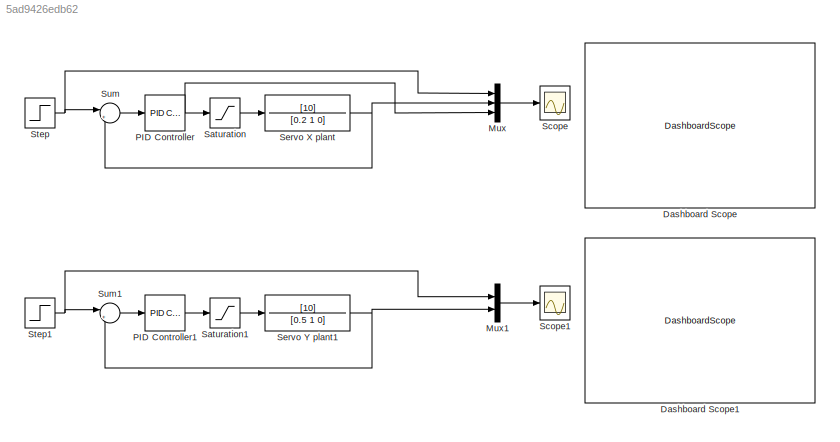
MODEL slx_5ad9426edb62
KIND model
CONFIG AbsTol = auto
CONFIG EnableMultiTasking = off
CONFIG FixedStep = auto
CONFIG MaxStep = auto
CONFIG MinStep = auto
CONFIG RelTol = 1e-3
CONFIG SampleTimeConstraint = Unconstrained
CONFIG SolverName = VariableStepAuto
CONFIG StartTime = 0.0
CONFIG StopTime = 10.0
BLOCK [DashboardScope] Dashboard Scope
BLOCK [DashboardScope] Dashboard Scope1
BLOCK [Mux] Mux
  DisplayOption = bar
  Inputs = 3
BLOCK [Mux] Mux1
  DisplayOption = bar
  Inputs = 2
BLOCK [Reference] PID Controller  REF=slpidlib/PID Controller
  LibrarySourceBlock = simulink/Continuous/PID Controller
  SourceBlock = slpidlib/PID Controller
  SourceType = PID 1dof
BLOCK [Reference] PID Controller1  REF=slpidlib/PID Controller
  LibrarySourceBlock = simulink/Continuous/PID Controller
  SourceBlock = slpidlib/PID Controller
  SourceType = PID 1dof
BLOCK [Saturate] Saturation
  LowerLimit = -10
  UpperLimit = 10
BLOCK [Saturate] Saturation1
  LowerLimit = -10
  UpperLimit = 10
BLOCK [Scope] Scope
  Floating = off
  NumInputPorts = 1
  ScopeSpecificationString = Simulink.scopes.TimeScopeBlockCfg('CurrentConfiguration', extmgr.ConfigurationSet(extmgr.Configuration('Core','General UI',true),extmgr.Configuration('Core','Source UI',true),extmgr.Configuration('Sources','WiredSimulink',true),extmgr.Configuration('Visuals','Time Domain',true,'SerializedDisplays',{struct('MinYLimReal','-516.41471','MaxYLimReal','4647.03558','YLabelReal','','MinYLimMag',' 0.00000'...<+1428ch>
BLOCK [Scope] Scope1
  Floating = off
  NumInputPorts = 1
  ScopeSpecificationString = Simulink.scopes.TimeScopeBlockCfg('CurrentConfiguration', extmgr.ConfigurationSet(extmgr.Configuration('Core','General UI',true),extmgr.Configuration('Core','Source UI',true),extmgr.Configuration('Sources','WiredSimulink',true,'DataLoggingVariableName','ScopeData1'),extmgr.Configuration('Visuals','Time Domain',true,'SerializedDisplays',{struct('MinYLimReal','-0.12525','MaxYLimReal','1.12728','YLab...<+1415ch>
BLOCK [TransferFcn] Servo X plant
  Denominator = [0.2 1  0]
  Numerator = [10]
BLOCK [TransferFcn] Servo Y plant1
  Denominator = [0.5 1  0]
  Numerator = [10]
BLOCK [Step] Step
  SampleTime = 0
BLOCK [Step] Step1
  SampleTime = 0
BLOCK [Sum] Sum
  Inputs = |+-
BLOCK [Sum] Sum1
  Inputs = |+-
LINE Mux1:1 -> Scope1:1
LINE Mux:1 -> Scope:1
LINE PID Controller1:1 -> Saturation1:1
NET PID Controller:1 -> Mux:3, Saturation:1
LINE Saturation1:1 -> Servo Y plant1:1
LINE Saturation:1 -> Servo X plant:1
NET Servo X plant:1 -> Mux:2, Sum:2
NET Servo Y plant1:1 -> Mux1:2, Sum1:2
NET Step1:1 -> Mux1:1, Sum1:1
NET Step:1 -> Mux:1, Sum:1
LINE Sum1:1 -> PID Controller1:1
LINE Sum:1 -> PID Controller:1
note: NET lines group one-source signal fan-out (src -> all destinations, sorted); 1:1 wires keep LINE
